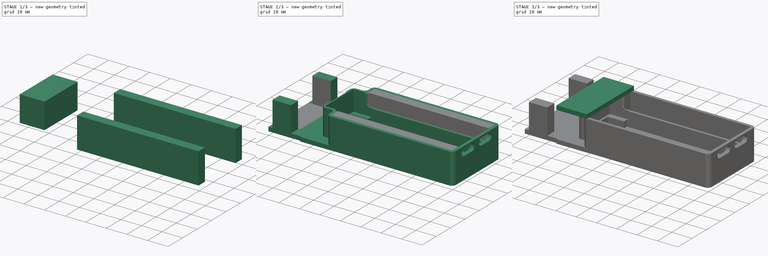
[diagram: build sequence overview — one tinted view per stage of 3, left to right]
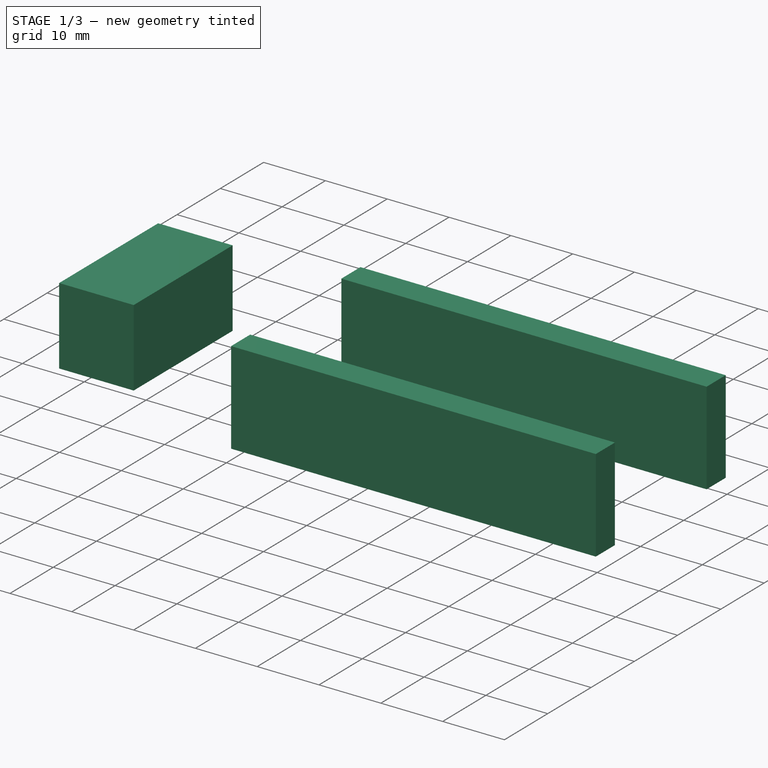
[diagram: stage 1 of 3 — iso view after this stage's code; geometry added in this stage tinted green]
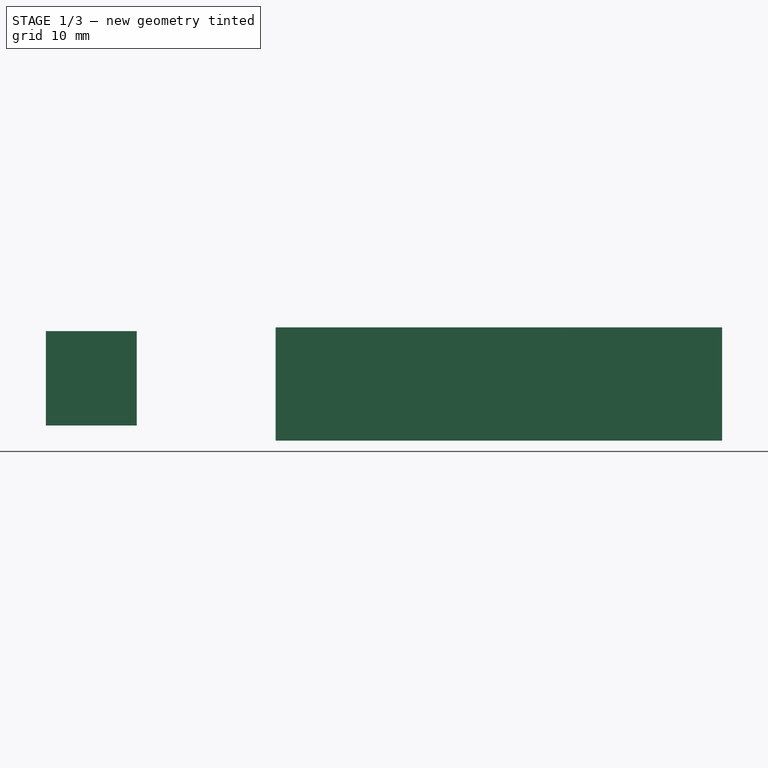
[diagram: stage 1 of 3 — front view after this stage's code; geometry added in this stage tinted green]
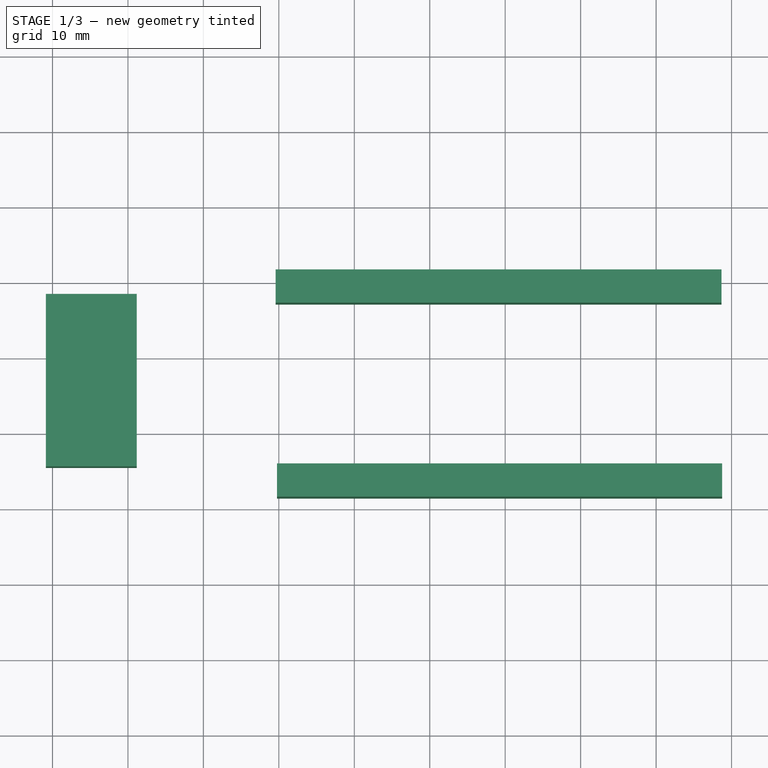
[diagram: stage 1 of 3 — top view after this stage's code; geometry added in this stage tinted green]
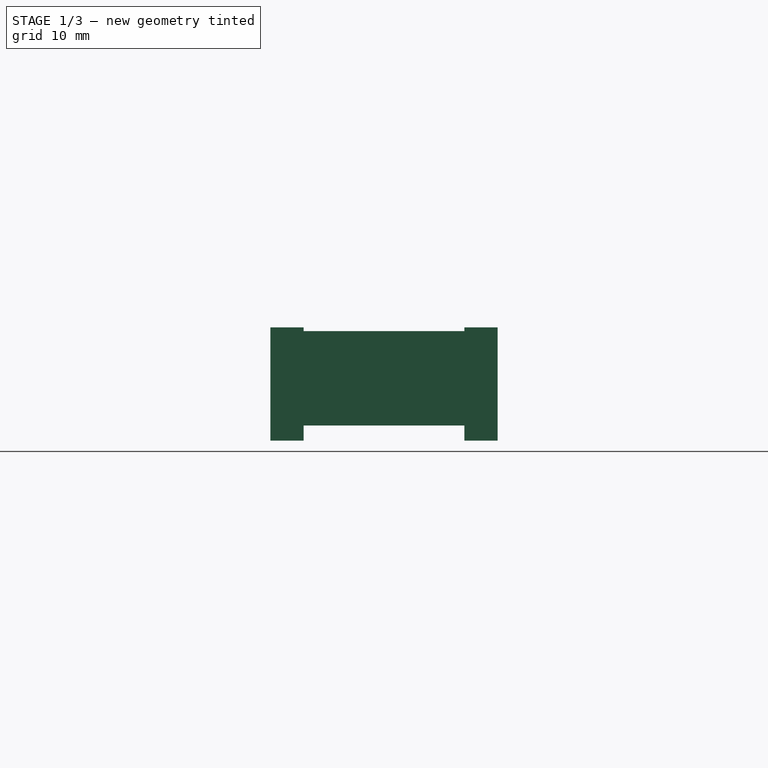
[diagram: stage 1 of 3 — right view after this stage's code; geometry added in this stage tinted green]
FCSTD DOCUMENT  (FreeCAD 1.0R39319 (Git))
Label: Case bottom with servo holder v2
License: All rights reserved
objects: Sketcher::SketchObject×4, Part::Extrusion×4, Part::Feature×2, Part::FeaturePython×2, PartDesign::Body×1, Part::Cut×1, App::Part×1
note: 18 computed .brp shape members not serialized (recipe doc carries the construction recipe); baked Part::Feature solids carry a one-line shape summary decoded from their .brp

FEATURE [Sketcher::SketchObject] Sketch002  label="servo cut"
  ArcFitTolerance = 1e-06
  AttachmentSupport = -> [Cutout]
  FullyConstrained = false
  MakeInternals = false
  MapMode = 5
  Placement = pos=(0,0,-0.5) rot=(0,0,1;0rad)
  sketch-geometry (4):
    g0: LineSegment StartX=-90.8815 StartY=28.3377 StartZ=0 EndX=-90.8815 EndY=5.47342 EndZ=0
    g1: LineSegment StartX=-90.8815 StartY=5.47342 StartZ=0 EndX=-78.8251 EndY=5.47342 EndZ=0
    g2: LineSegment StartX=-78.8251 StartY=5.47342 StartZ=0 EndX=-78.8251 EndY=28.3377 EndZ=0
    g3: LineSegment StartX=-78.8251 StartY=28.3377 StartZ=0 EndX=-90.8815 EndY=28.3377 EndZ=0
  constraints (8):
    c: Coincident(g0,g1)
    c: Coincident(g1,g2)
    c: Coincident(g2,g3)
    c: Coincident(g3,g0)
    c: Vertical(g0)
    c: Vertical(g2)
    c: Horizontal(g1)
    c: Horizontal(g3)
FEATURE [Part::Extrusion] Extrude002
  Base = -> Sketch002
  Dir = (0,0,1)
  DirMode = 2
  FaceMakerClass = Part::FaceMakerBullseye
  FaceMakerMode = 3
  LengthFwd = -12.5
  LengthRev = 0
  Solid = true
  Symmetric = false
FEATURE [Sketcher::SketchObject] Sketch003  label="pins cut"
  ArcFitTolerance = 1e-06
  AttachmentSupport = -> [Fusion003]
  FullyConstrained = false
  MakeInternals = false
  MapMode = 5
  Placement = pos=(0,0,-15) rot=(1,0,0;3.14159rad)
  sketch-geometry (8):
    g0: LineSegment StartX=-60.2512 StartY=-1.45473 StartZ=0 EndX=-60.2512 EndY=-5.86589 EndZ=0
    g1: LineSegment StartX=-60.2512 StartY=-5.86589 StartZ=0 EndX=-1.24335 EndY=-5.86589 EndZ=0
    g2: LineSegment StartX=-1.24335 StartY=-5.86589 StartZ=0 EndX=-1.24335 EndY=-1.45473 EndZ=0
    g3: LineSegment StartX=-1.24335 StartY=-1.45473 StartZ=0 EndX=-60.2512 EndY=-1.45473 EndZ=0
    g4: LineSegment StartX=-60.4177 StartY=-27.1725 StartZ=0 EndX=-60.4177 EndY=-31.5837 EndZ=0
    g5: LineSegment StartX=-60.4177 StartY=-31.5837 StartZ=0 EndX=-1.32657 EndY=-31.5837 EndZ=0
    g6: LineSegment StartX=-1.32657 StartY=-31.5837 StartZ=0 EndX=-1.32657 EndY=-27.1725 EndZ=0
    g7: LineSegment StartX=-1.32657 StartY=-27.1725 StartZ=0 EndX=-60.4177 EndY=-27.1725 EndZ=0
  constraints (16):
    c: Coincident(g0,g1)
    c: Coincident(g1,g2)
    c: Coincident(g2,g3)
    c: Coincident(g3,g0)
    c: Vertical(g0)
    c: Vertical(g2)
    c: Horizontal(g1)
    c: Horizontal(g3)
    c: Coincident(g4,g5)
    c: Coincident(g5,g6)
    c: Coincident(g6,g7)
    c: Coincident(g7,g4)
    c: Vertical(g4)
    c: Vertical(g6)
    c: Horizontal(g5)
    c: Horizontal(g7)
FEATURE [Part::Extrusion] Extrude007
  Base = -> Sketch003
  Dir = (0,0,-1)
  DirMode = 2
  FaceMakerClass = Part::FaceMakerBullseye
  FaceMakerMode = 3
  LengthFwd = -15
  LengthRev = 0
  Solid = true
  Symmetric = false
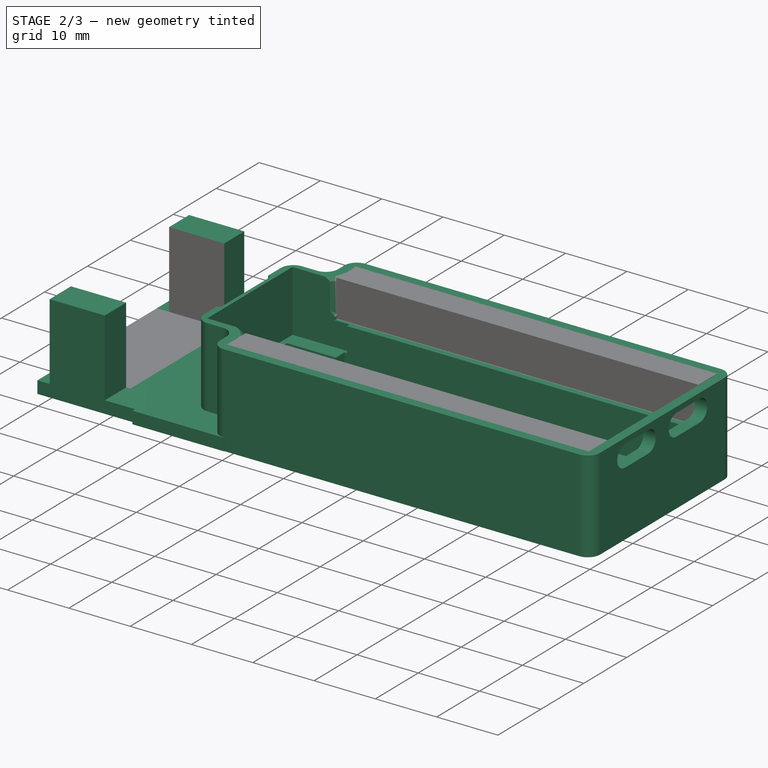
[diagram: stage 2 of 3 — iso view after this stage's code; geometry added in this stage tinted green]
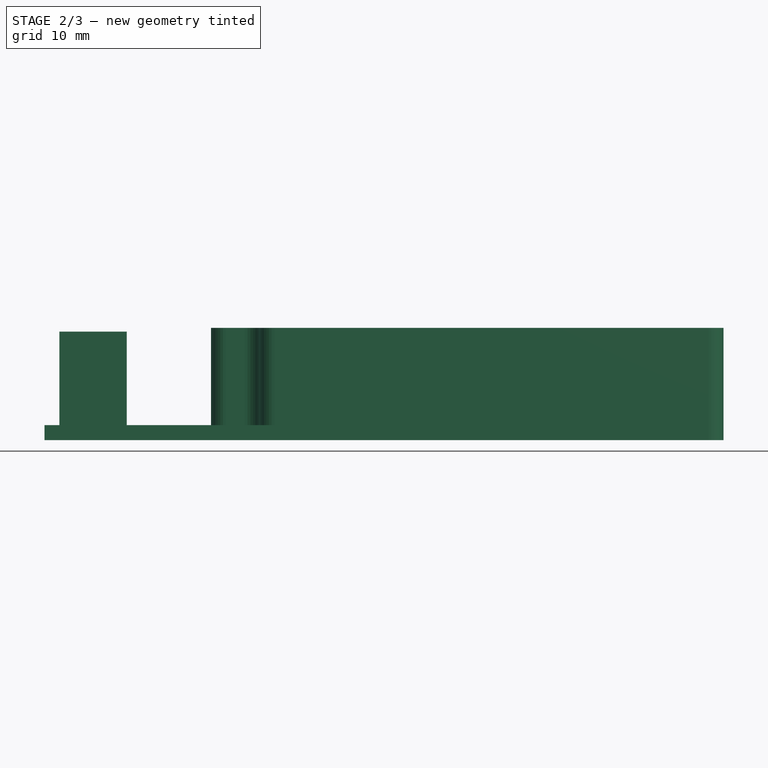
[diagram: stage 2 of 3 — front view after this stage's code; geometry added in this stage tinted green]
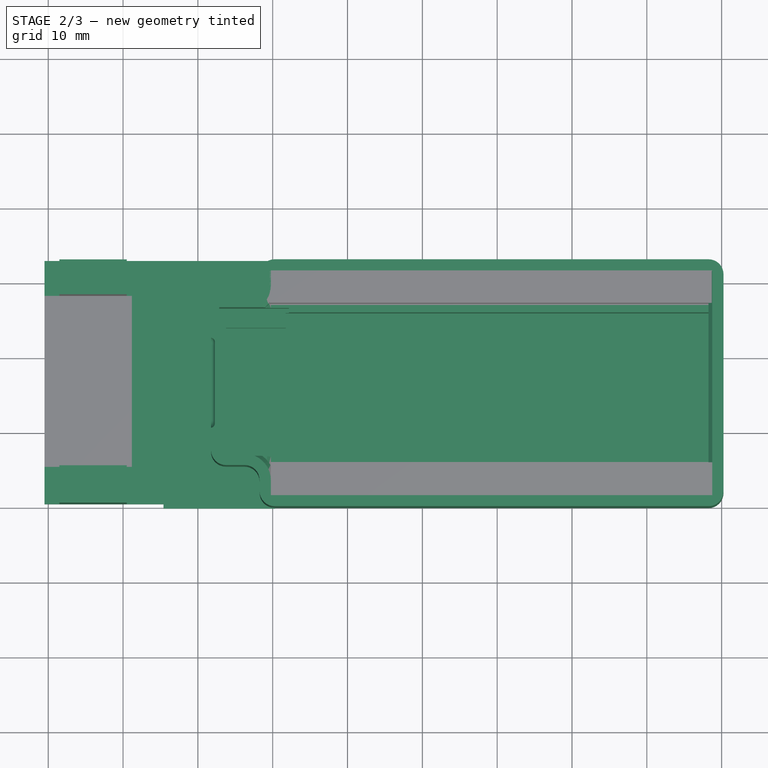
[diagram: stage 2 of 3 — top view after this stage's code; geometry added in this stage tinted green]
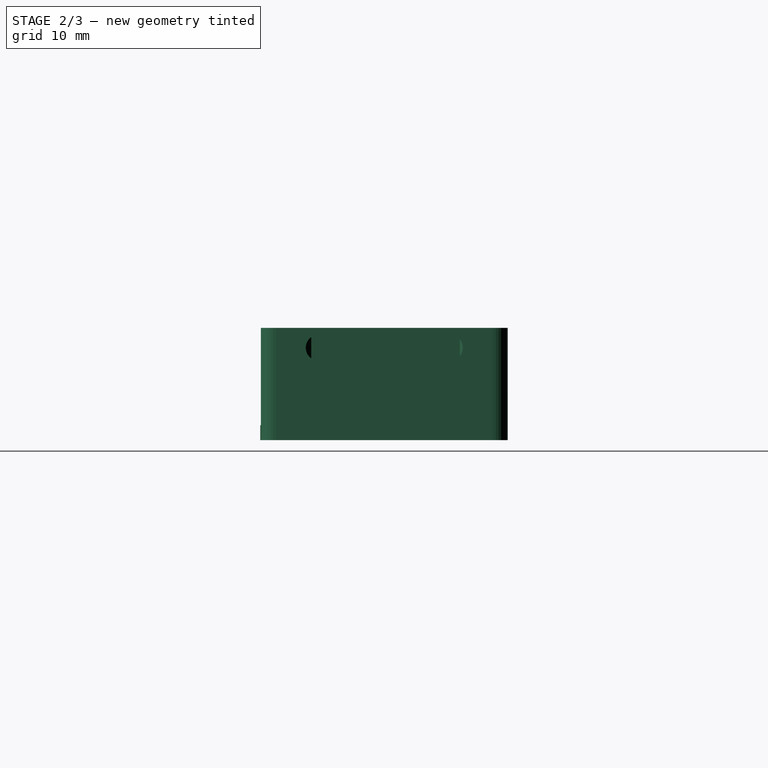
[diagram: stage 2 of 3 — right view after this stage's code; geometry added in this stage tinted green]
FEATURE [Part::Feature] Fusion003
  Placement = pos=(0,0,-15) rot=(0,0,1;0rad)
  shape: bbox 90.75 x 33.08 x 15 mm, 667 faces (baked)
FEATURE [PartDesign::Body] Body
  AllowCompound = false
  Origin = -> Origin001
FEATURE [Sketcher::SketchObject] Sketch001  label="wifi cut"
  ArcFitTolerance = 1e-06
  AttachmentSupport = -> [XY_Plane001]
  FullyConstrained = false
  MakeInternals = false
  MapMode = 5
  sketch-geometry (4):
    g0: LineSegment StartX=-67.1498 StartY=26.5853 StartZ=0 EndX=-67.1498 EndY=6.7372 EndZ=0
    g1: LineSegment StartX=-67.1498 StartY=6.7372 StartZ=0 EndX=-57.8452 EndY=6.7372 EndZ=0
    g2: LineSegment StartX=-57.8452 StartY=6.7372 StartZ=0 EndX=-57.8452 EndY=26.5853 EndZ=0
    g3: LineSegment StartX=-57.8452 StartY=26.5853 StartZ=0 EndX=-67.1498 EndY=26.5853 EndZ=0
  constraints (8):
    c: Coincident(g0,g1)
    c: Coincident(g1,g2)
    c: Coincident(g2,g3)
    c: Coincident(g3,g0)
    c: Vertical(g0)
    c: Vertical(g2)
    c: Horizontal(g1)
    c: Horizontal(g3)
FEATURE [Part::Extrusion] Extrude001
  Base = -> Sketch001
  Dir = (0,0,-10)
  DirMode = 0
  FaceMakerClass = Part::FaceMakerBullseye
  FaceMakerMode = 3
  LengthFwd = 10
  LengthRev = 0
  Solid = true
  Symmetric = false
FEATURE [Part::FeaturePython] Cutout  # WARN: FeaturePython — macro-defined, semantics opaque (R4)
  Base = -> Fusion003
  Tolerance = 0
  Tool = -> Extrude001
FEATURE [Part::FeaturePython] Cutout001  # WARN: FeaturePython — macro-defined, semantics opaque (R4)
  Base = -> Cutout
  Tolerance = 0
  Tool = -> Extrude002
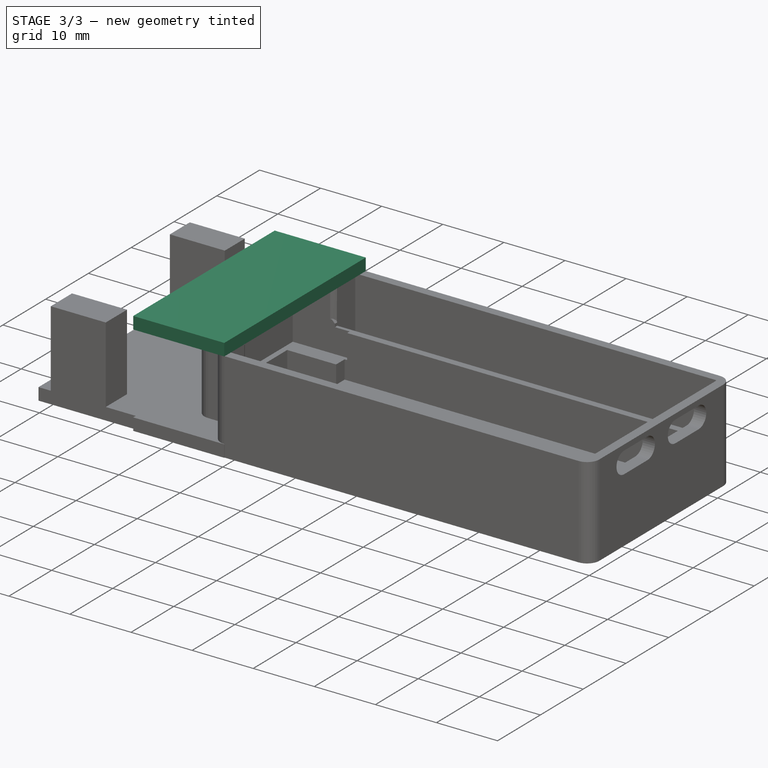
[diagram: stage 3 of 3 — iso view after this stage's code; geometry added in this stage tinted green]
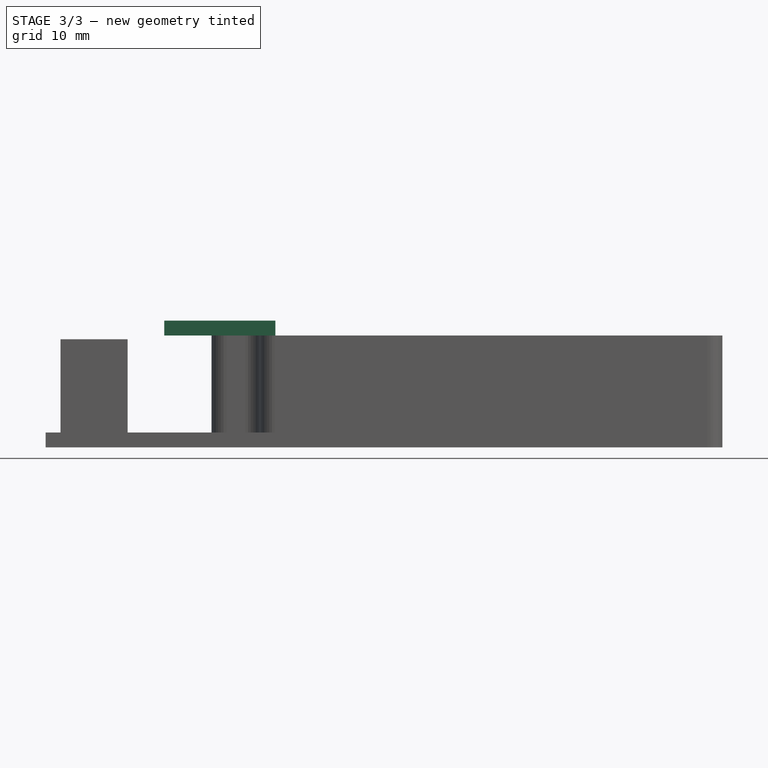
[diagram: stage 3 of 3 — front view after this stage's code; geometry added in this stage tinted green]
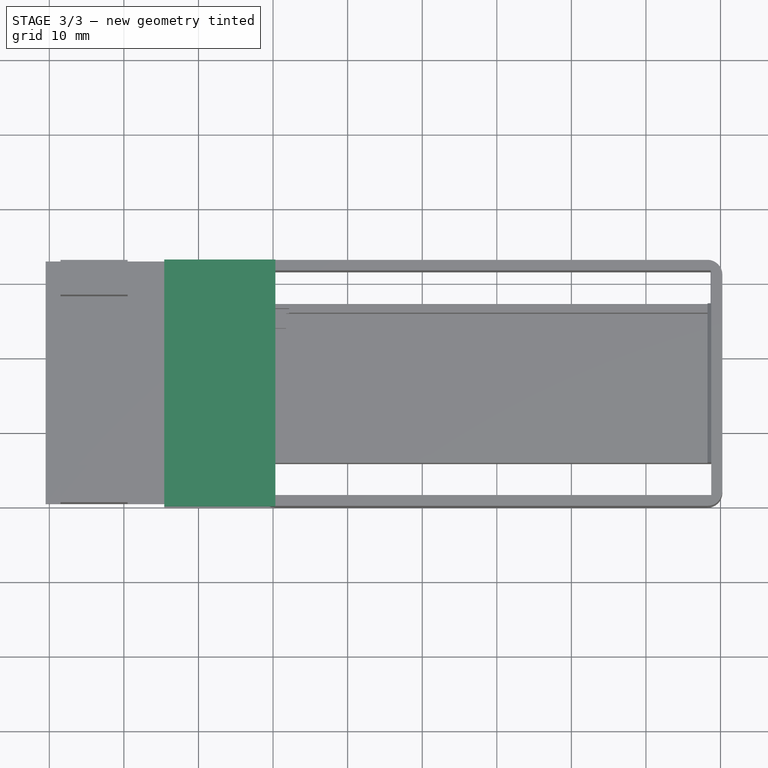
[diagram: stage 3 of 3 — top view after this stage's code; geometry added in this stage tinted green]
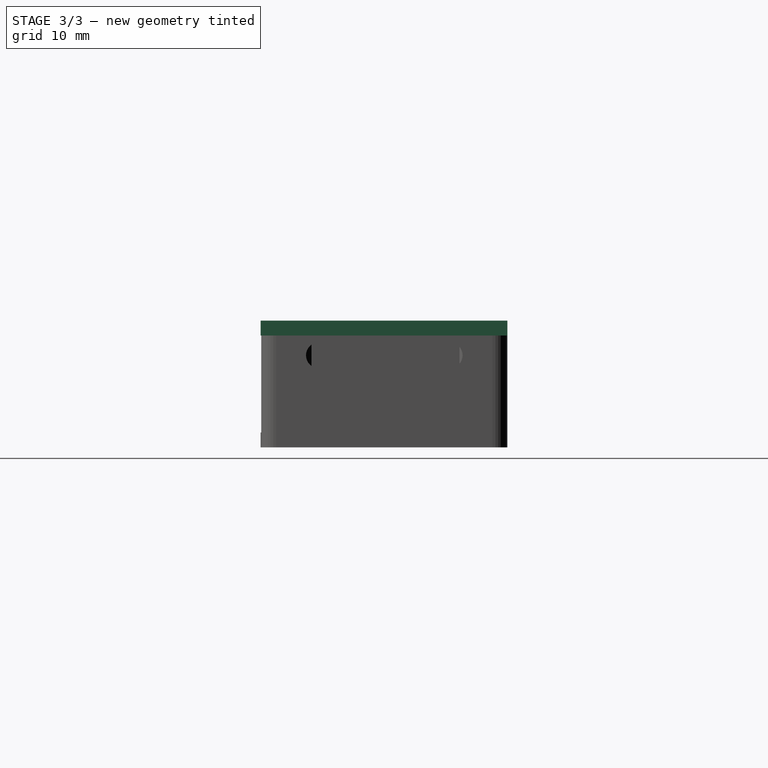
[diagram: stage 3 of 3 — right view after this stage's code; geometry added in this stage tinted green]
FEATURE [Part::Feature] Servo_Mount_v004_solid001  label="Servo_Mount_v004 (Solid)001"
  Placement = pos=(-68,33,0) rot=(0,0,1;3.14159rad)
  shape: bbox 22.5 x 32.5 x 14.5 mm, 56 faces (baked)
FEATURE [Sketcher::SketchObject] Sketch  label="servo mount connecct"
  ArcFitTolerance = 1e-06
  AttachmentSupport = -> [Servo_Mount_v004_solid001]
  FullyConstrained = false
  MakeInternals = false
  MapMode = 2
  Placement = pos=(-68,33,0) rot=(0,0,1;3.14159rad)
  sketch-geometry (4):
    g0: LineSegment StartX=8.59708 StartY=33.0815 StartZ=0 EndX=-6.31293 EndY=33.0815 EndZ=0
    g1: LineSegment StartX=-6.31293 StartY=33.0815 StartZ=0 EndX=-6.31293 EndY=0 EndZ=0
    g2: LineSegment StartX=-6.31293 StartY=0 StartZ=0 EndX=8.59708 EndY=0 EndZ=0
    g3: LineSegment StartX=8.59708 StartY=0 StartZ=0 EndX=8.59708 EndY=33.0815 EndZ=0
  constraints (9):
    c: Coincident(g0,g1)
    c: Coincident(g1,g2)
    c: Coincident(g2,g3)
    c: Coincident(g3,g0)
    c: Horizontal(g0)
    c: Horizontal(g2)
    c: Vertical(g1)
    c: Vertical(g3)
    c: PointOnObject(g1,g-1)
FEATURE [Part::Extrusion] Extrude
  Base = -> Sketch
  Dir = (0,0,1)
  DirMode = 0
  FaceMakerClass = Part::FaceMakerBullseye
  FaceMakerMode = 3
  LengthFwd = 2
  LengthRev = 0
  Placement = pos=(2,0,0) rot=(0,0,1;0rad)
  Solid = true
  Symmetric = false
FEATURE [Part::Cut] Cut
  Base = -> Cutout001
  Tool = -> Extrude007
FEATURE [App::Part] Part
  Group = -> [Extrude,Servo_Mount_v004_solid001,Sketch,Body,Cutout001,Cutout,Fusion003,Sketch001,Extrude001,Sketch002,Extrude002,Sketch003,Extrude007,Cut]
  Origin = -> Origin
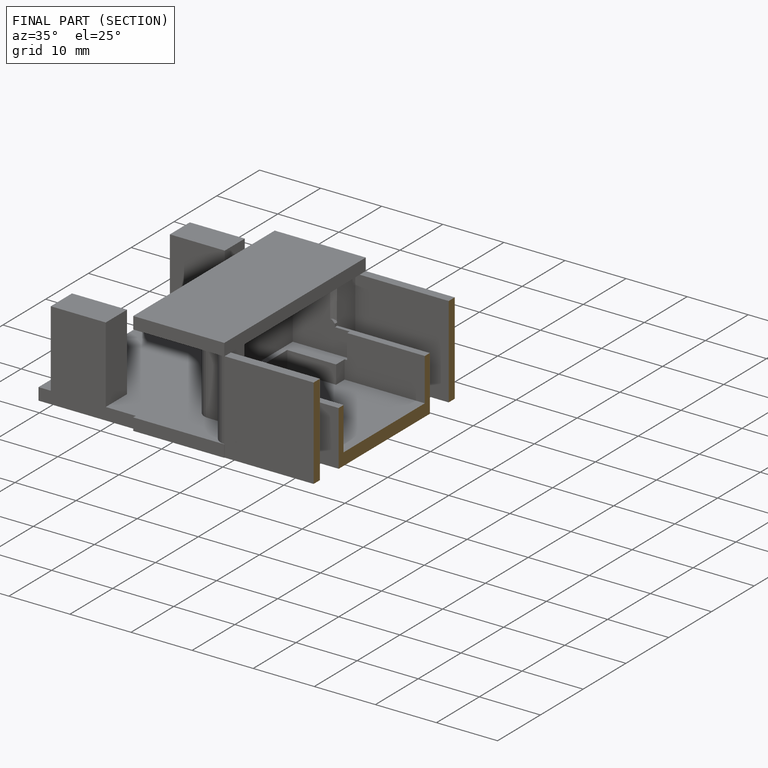
[diagram: finished part — half-section view (interior)]
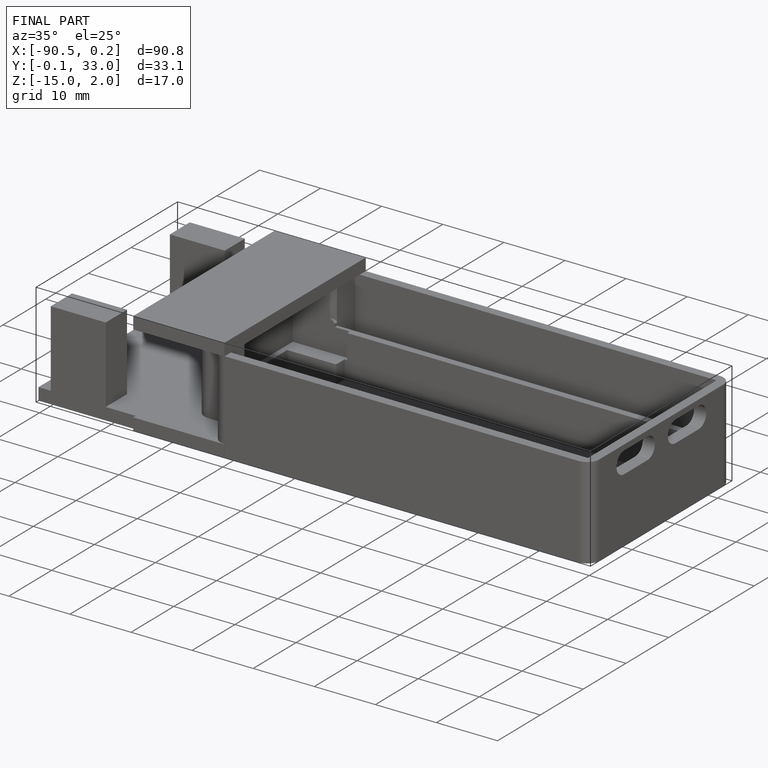
[diagram: finished part — iso view with bounding-box wireframe]
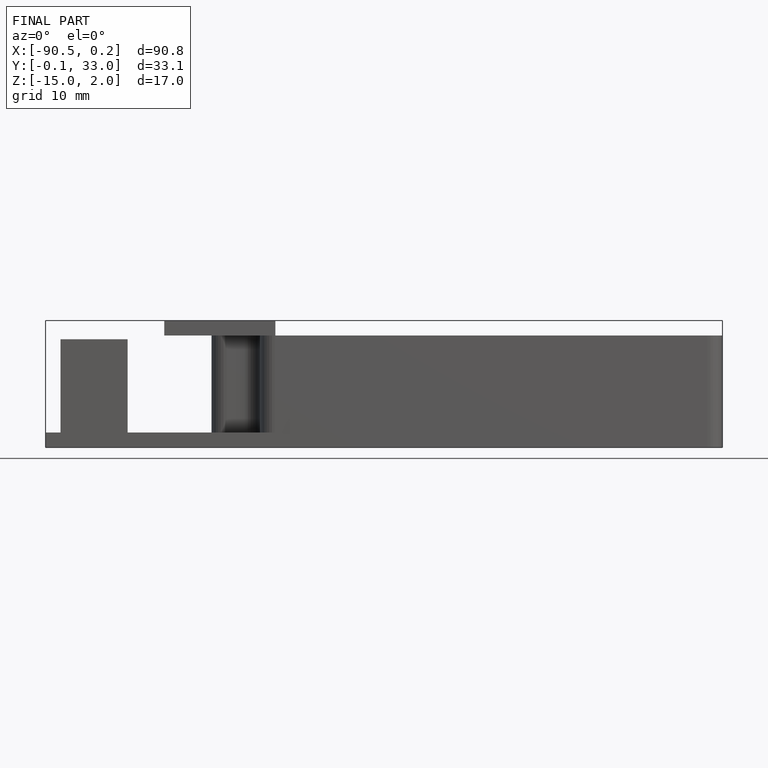
[diagram: finished part — front view with bounding-box wireframe]
